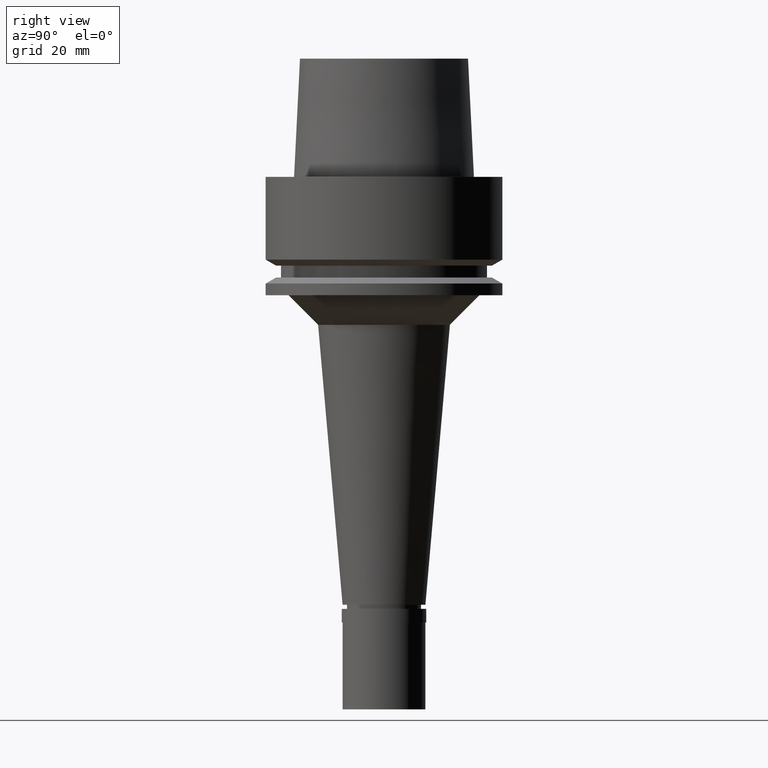
[diagram: clean part render]
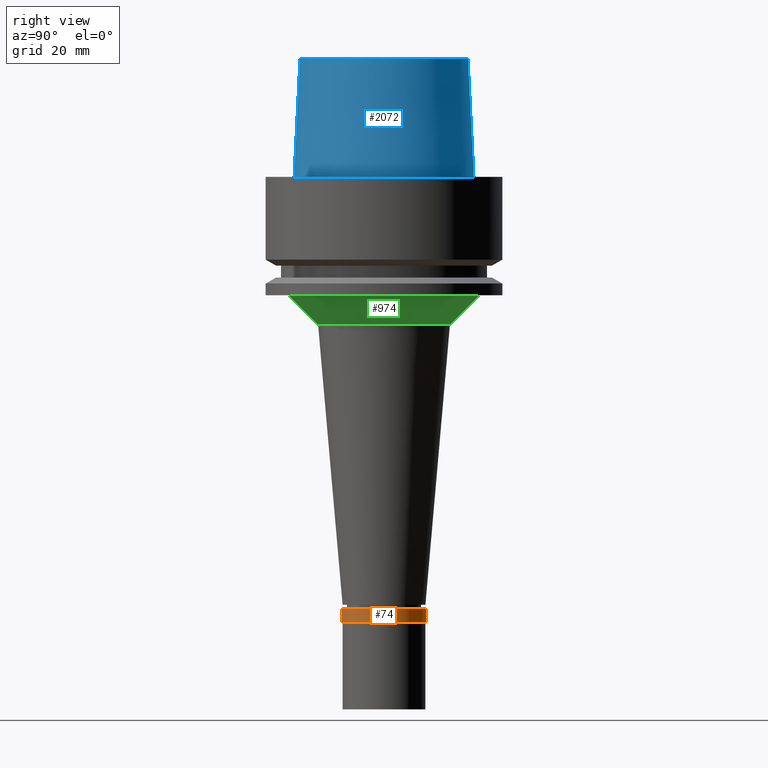
[diagram: same view with three faces highlighted in distinct colors, each labeled with its STEP entity id]
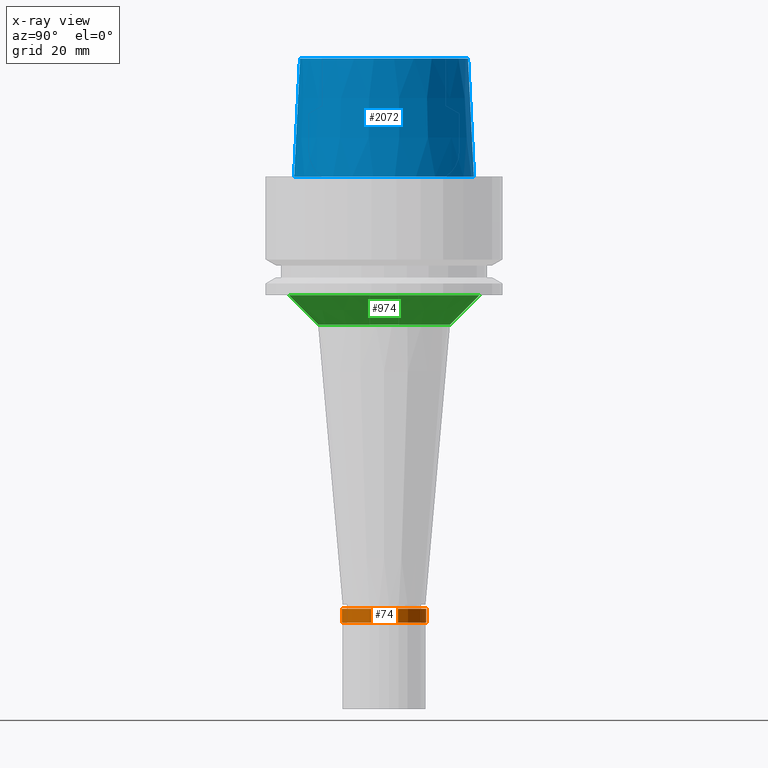
[diagram: x-ray of the same camera — body ghosted, the three highlighted faces saturated]
A machine part, right view with three faces highlighted in distinct colors.
The next image is the same camera in x-ray (body ghosted, the three faces saturated) — at least one of them is partly hidden behind the body in this view.
Their STEP definitions:

[orange] entity #74 — the highlighted cylindrical surface (partial cylindrical patch) has radius 7.15 mm, axis along (0, 0, 1).
#50 = CARTESIAN_POINT ( 'NONE',  ( 0.0000000000000000000, -7.150000000000000355, 1.776356839399999922E-14 ) ) ;
#60 = EDGE_CURVE ( 'NONE', #1770, #2148, #358, .T. ) ;
#74 = ADVANCED_FACE ( 'NONE', ( #741 ), #541, .T. ) ;
#86 = AXIS2_PLACEMENT_3D ( 'NONE', #123, #1853, #183 ) ;
#104 = CARTESIAN_POINT ( 'NONE',  ( 0.0000000000000000000, 7.150000000000000355, 0.0000000000000000000 ) ) ;
#123 = CARTESIAN_POINT ( 'NONE',  ( 0.0000000000000000000, 0.0000000000000000000, -2.299999999999999822 ) ) ;
#142 = ORIENTED_EDGE ( 'NONE', *, *, #711, .T. ) ;
#183 = DIRECTION ( 'NONE',  ( 0.0000000000000000000, -1.000000000000000000, 0.0000000000000000000 ) ) ;
#216 = ORIENTED_EDGE ( 'NONE', *, *, #1209, .T. ) ;
#304 = DIRECTION ( 'NONE',  ( 0.0000000000000000000, 0.0000000000000000000, -1.000000000000000000 ) ) ;
#333 = DIRECTION ( 'NONE',  ( 0.0000000000000000000, 1.000000000000000000, 0.0000000000000000000 ) ) ;
#358 = CIRCLE ( 'NONE', #935, 7.150000000000000355 ) ;
#452 = ORIENTED_EDGE ( 'NONE', *, *, #60, .T. ) ;
#541 = CYLINDRICAL_SURFACE ( 'NONE', #732, 7.150000000000000355 ) ;
#579 = CARTESIAN_POINT ( 'NONE',  ( 0.0000000000000000000, 7.150000000000000355, -2.299999999999999822 ) ) ;
#705 = DIRECTION ( 'NONE',  ( 0.0000000000000000000, 0.0000000000000000000, -1.000000000000000000 ) ) ;
#711 = EDGE_CURVE ( 'NONE', #2148, #714, #811, .T. ) ;
#714 = VERTEX_POINT ( 'NONE', #2208 ) ;
#732 = AXIS2_PLACEMENT_3D ( 'NONE', #756, #1579, #1126 ) ;
#741 = FACE_OUTER_BOUND ( 'NONE', #2105, .T. ) ;
#756 = CARTESIAN_POINT ( 'NONE',  ( 0.0000000000000000000, 0.0000000000000000000, -17.85000000000000142 ) ) ;
#811 = LINE ( 'NONE', #1645, #1996 ) ;
#935 = AXIS2_PLACEMENT_3D ( 'NONE', #1340, #705, #333 ) ;
#1091 = ORIENTED_EDGE ( 'NONE', *, *, #2570, .F. ) ;
#1099 = LINE ( 'NONE', #104, #1481 ) ;
#1126 = DIRECTION ( 'NONE',  ( 0.0000000000000000000, 1.000000000000000000, 0.0000000000000000000 ) ) ;
#1209 = EDGE_CURVE ( 'NONE', #714, #2324, #1344, .T. ) ;
#1340 = CARTESIAN_POINT ( 'NONE',  ( 0.0000000000000000000, 0.0000000000000000000, 1.776356839399999922E-14 ) ) ;
#1344 = CIRCLE ( 'NONE', #86, 7.150000000000000355 ) ;
#1481 = VECTOR ( 'NONE', #304, 1000.000000000000000 ) ;
#1502 = CARTESIAN_POINT ( 'NONE',  ( 0.0000000000000000000, 7.150000000000000355, 1.776356839399999922E-14 ) ) ;
#1579 = DIRECTION ( 'NONE',  ( 0.0000000000000000000, 0.0000000000000000000, 1.000000000000000000 ) ) ;
#1645 = CARTESIAN_POINT ( 'NONE',  ( 0.0000000000000000000, -7.150000000000000355, 0.0000000000000000000 ) ) ;
#1770 = VERTEX_POINT ( 'NONE', #1502 ) ;
#1853 = DIRECTION ( 'NONE',  ( 0.0000000000000000000, 0.0000000000000000000, 1.000000000000000000 ) ) ;
#1996 = VECTOR ( 'NONE', #2478, 1000.000000000000000 ) ;
#2105 = EDGE_LOOP ( 'NONE', ( #452, #142, #216, #1091 ) ) ;
#2148 = VERTEX_POINT ( 'NONE', #50 ) ;
#2208 = CARTESIAN_POINT ( 'NONE',  ( 0.0000000000000000000, -7.150000000000000355, -2.299999999999999822 ) ) ;
#2324 = VERTEX_POINT ( 'NONE', #579 ) ;
#2478 = DIRECTION ( 'NONE',  ( 0.0000000000000000000, 0.0000000000000000000, -1.000000000000000000 ) ) ;
#2570 = EDGE_CURVE ( 'NONE', #1770, #2324, #1099, .T. ) ;

[blue] entity #2072 — the highlighted conical surface has half-angle 2.862 deg.
#164 = CARTESIAN_POINT ( 'NONE',  ( 0.0000000000000000000, -14.20000146305999955, 20.00000000000000000 ) ) ;
#345 = ORIENTED_EDGE ( 'NONE', *, *, #971, .T. ) ;
#422 = CIRCLE ( 'NONE', #1479, 15.19999963424000100 ) ;
#625 = DIRECTION ( 'NONE',  ( 0.0000000000000000000, 0.0000000000000000000, 1.000000000000000000 ) ) ;
#725 = VERTEX_POINT ( 'NONE', #826 ) ;
#731 = AXIS2_PLACEMENT_3D ( 'NONE', #2398, #2137, #1771 ) ;
#795 = DIRECTION ( 'NONE',  ( 0.0000000000000000000, -0.04993752584496928548, -0.9987523434327867378 ) ) ;
#819 = DIRECTION ( 'NONE',  ( 0.0000000000000000000, 0.04993752584496928548, -0.9987523434327867378 ) ) ;
#826 = CARTESIAN_POINT ( 'NONE',  ( 0.0000000000000000000, -14.20000146305999955, 20.00000000000000000 ) ) ;
#844 = VERTEX_POINT ( 'NONE', #2019 ) ;
#953 = ORIENTED_EDGE ( 'NONE', *, *, #1246, .T. ) ;
#971 = EDGE_CURVE ( 'NONE', #1964, #2553, #422, .T. ) ;
#1046 = AXIS2_PLACEMENT_3D ( 'NONE', #1516, #1740, #2203 ) ;
#1058 = ORIENTED_EDGE ( 'NONE', *, *, #1417, .T. ) ;
#1184 = LINE ( 'NONE', #164, #1826 ) ;
#1235 = CARTESIAN_POINT ( 'NONE',  ( 0.0000000000000000000, 15.19999963424000100, 3.801403636316999971E-13 ) ) ;
#1246 = EDGE_CURVE ( 'NONE', #725, #1964, #1184, .T. ) ;
#1314 = VECTOR ( 'NONE', #819, 999.9999999999998863 ) ;
#1343 = EDGE_LOOP ( 'NONE', ( #1058, #953, #345, #2592 ) ) ;
#1417 = EDGE_CURVE ( 'NONE', #844, #725, #1870, .T. ) ;
#1479 = AXIS2_PLACEMENT_3D ( 'NONE', #2500, #625, #1941 ) ;
#1516 = CARTESIAN_POINT ( 'NONE',  ( 0.0000000000000000000, 0.0000000000000000000, 20.00000000000000000 ) ) ;
#1740 = DIRECTION ( 'NONE',  ( 0.0000000000000000000, 0.0000000000000000000, -1.000000000000000000 ) ) ;
#1771 = DIRECTION ( 'NONE',  ( 0.0000000000000000000, -1.000000000000000000, 0.0000000000000000000 ) ) ;
#1826 = VECTOR ( 'NONE', #795, 999.9999999999998863 ) ;
#1870 = CIRCLE ( 'NONE', #1046, 14.20000146305999955 ) ;
#1890 = EDGE_CURVE ( 'NONE', #844, #2553, #2078, .T. ) ;
#1941 = DIRECTION ( 'NONE',  ( 0.0000000000000000000, -1.000000000000000000, 0.0000000000000000000 ) ) ;
#1964 = VERTEX_POINT ( 'NONE', #2667 ) ;
#2019 = CARTESIAN_POINT ( 'NONE',  ( 0.0000000000000000000, 14.20000146305999955, 20.00000000000000000 ) ) ;
#2052 = CARTESIAN_POINT ( 'NONE',  ( 0.0000000000000000000, 14.20000146305999955, 20.00000000000000000 ) ) ;
#2072 = ADVANCED_FACE ( 'NONE', ( #2593 ), #2389, .T. ) ;
#2078 = LINE ( 'NONE', #2052, #1314 ) ;
#2137 = DIRECTION ( 'NONE',  ( 0.0000000000000000000, 0.0000000000000000000, -1.000000000000000000 ) ) ;
#2203 = DIRECTION ( 'NONE',  ( 0.0000000000000000000, 1.000000000000000000, 0.0000000000000000000 ) ) ;
#2389 = CONICAL_SURFACE ( 'NONE', #731, 14.70000054865000116, 0.04995830450907576964 ) ;
#2398 = CARTESIAN_POINT ( 'NONE',  ( 0.0000000000000000000, 0.0000000000000000000, 10.00000000000000000 ) ) ;
#2500 = CARTESIAN_POINT ( 'NONE',  ( 0.0000000000000000000, 0.0000000000000000000, 6.821210263297000155E-13 ) ) ;
#2553 = VERTEX_POINT ( 'NONE', #1235 ) ;
#2592 = ORIENTED_EDGE ( 'NONE', *, *, #1890, .F. ) ;
#2593 = FACE_OUTER_BOUND ( 'NONE', #1343, .T. ) ;
#2667 = CARTESIAN_POINT ( 'NONE',  ( 0.0000000000000000000, -15.19999963424000100, 3.801403636316999971E-13 ) ) ;

[green] entity #974 — the highlighted conical surface has half-angle 45 deg.
#78 = DIRECTION ( 'NONE',  ( 0.0000000000000000000, 0.7071067811866975639, -0.7071067811863974706 ) ) ;
#190 = VERTEX_POINT ( 'NONE', #1541 ) ;
#230 = VERTEX_POINT ( 'NONE', #1212 ) ;
#234 = ORIENTED_EDGE ( 'NONE', *, *, #2458, .F. ) ;
#318 = VERTEX_POINT ( 'NONE', #2504 ) ;
#407 = DIRECTION ( 'NONE',  ( 0.0000000000000000000, -1.000000000000000000, 0.0000000000000000000 ) ) ;
#412 = CARTESIAN_POINT ( 'NONE',  ( 0.0000000000000000000, 16.13821378477999957, -20.00000000000000000 ) ) ;
#415 = EDGE_CURVE ( 'NONE', #2062, #318, #1095, .T. ) ;
#473 = AXIS2_PLACEMENT_3D ( 'NONE', #1612, #986, #407 ) ;
#502 = FACE_OUTER_BOUND ( 'NONE', #2524, .T. ) ;
#650 = CONICAL_SURFACE ( 'NONE', #1955, 13.63821378477999957, 0.7853981633972997312 ) ;
#775 = AXIS2_PLACEMENT_3D ( 'NONE', #1615, #2628, #1169 ) ;
#776 = VECTOR ( 'NONE', #78, 1000.000000000000114 ) ;
#974 = ADVANCED_FACE ( 'NONE', ( #502 ), #650, .T. ) ;
#986 = DIRECTION ( 'NONE',  ( 0.0000000000000000000, 0.0000000000000000000, 1.000000000000000000 ) ) ;
#1095 = LINE ( 'NONE', #1513, #776 ) ;
#1106 = DIRECTION ( 'NONE',  ( 0.0000000000000000000, 1.000000000000000000, 0.0000000000000000000 ) ) ;
#1169 = DIRECTION ( 'NONE',  ( 0.0000000000000000000, 1.000000000000000000, 0.0000000000000000000 ) ) ;
#1212 = CARTESIAN_POINT ( 'NONE',  ( 0.0000000000000000000, 16.13821378477999957, -20.00000000000000000 ) ) ;
#1316 = VECTOR ( 'NONE', #1705, 1000.000000000000114 ) ;
#1509 = DIRECTION ( 'NONE',  ( 0.0000000000000000000, 0.0000000000000000000, 1.000000000000000000 ) ) ;
#1513 = CARTESIAN_POINT ( 'NONE',  ( 0.0000000000000000000, -16.13821378477999957, -20.00000000000000000 ) ) ;
#1541 = CARTESIAN_POINT ( 'NONE',  ( 0.0000000000000000000, 11.13821378477999957, -25.00000000000000000 ) ) ;
#1545 = EDGE_CURVE ( 'NONE', #230, #2062, #1556, .T. ) ;
#1556 = CIRCLE ( 'NONE', #775, 16.13821378477999957 ) ;
#1612 = CARTESIAN_POINT ( 'NONE',  ( 0.0000000000000000000, 0.0000000000000000000, -25.00000000000000000 ) ) ;
#1615 = CARTESIAN_POINT ( 'NONE',  ( 0.0000000000000000000, 0.0000000000000000000, -20.00000000000000000 ) ) ;
#1705 = DIRECTION ( 'NONE',  ( 0.0000000000000000000, -0.7071067811866975639, -0.7071067811863974706 ) ) ;
#1886 = ORIENTED_EDGE ( 'NONE', *, *, #1971, .T. ) ;
#1948 = ORIENTED_EDGE ( 'NONE', *, *, #415, .T. ) ;
#1955 = AXIS2_PLACEMENT_3D ( 'NONE', #2161, #1509, #1106 ) ;
#1971 = EDGE_CURVE ( 'NONE', #318, #190, #2044, .T. ) ;
#1992 = ORIENTED_EDGE ( 'NONE', *, *, #1545, .T. ) ;
#2044 = CIRCLE ( 'NONE', #473, 11.13821378477999957 ) ;
#2062 = VERTEX_POINT ( 'NONE', #2111 ) ;
#2111 = CARTESIAN_POINT ( 'NONE',  ( 0.0000000000000000000, -16.13821378477999957, -20.00000000000000000 ) ) ;
#2161 = CARTESIAN_POINT ( 'NONE',  ( 0.0000000000000000000, 0.0000000000000000000, -22.50000000000000000 ) ) ;
#2458 = EDGE_CURVE ( 'NONE', #230, #190, #2682, .T. ) ;
#2504 = CARTESIAN_POINT ( 'NONE',  ( 0.0000000000000000000, -11.13821378477999957, -25.00000000000000000 ) ) ;
#2524 = EDGE_LOOP ( 'NONE', ( #1992, #1948, #1886, #234 ) ) ;
#2628 = DIRECTION ( 'NONE',  ( 0.0000000000000000000, 0.0000000000000000000, -1.000000000000000000 ) ) ;
#2682 = LINE ( 'NONE', #412, #1316 ) ;